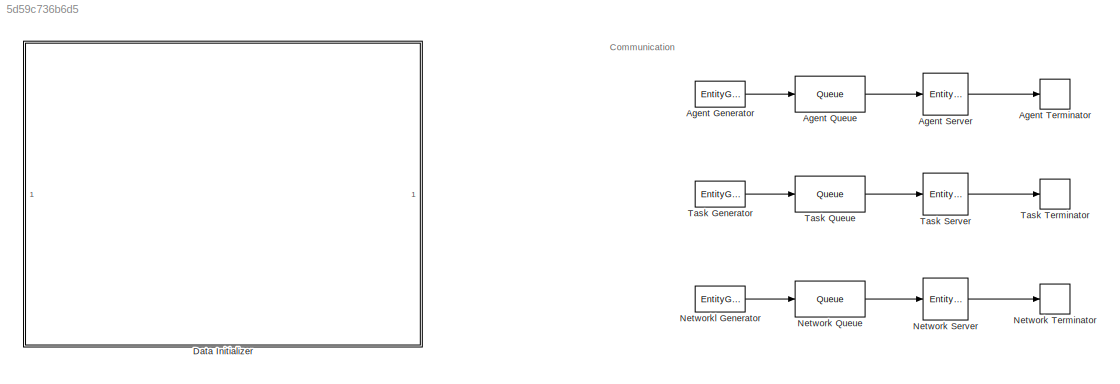
MODEL slx_5d59c736b6d5
KIND model
CONFIG AbsTol = auto
CONFIG EnableMultiTasking = off
CONFIG FixedStep = auto
CONFIG MaxStep = auto
CONFIG MinStep = auto
CONFIG RelTol = 1e-3
CONFIG SampleTimeConstraint = Unconstrained
CONFIG SolverName = VariableStepAuto
CONFIG StartTime = 0.0
CONFIG StopTime = 10.0
BLOCK [EntityGenerator] Agent Generator
  EntityType = Bus object
  EntityTypeName = agent
  GenerateAction = persistent count\nif isempty(count)\n    count = 0;\nend\ncount = count + 1;\nentity.Id = count;\nentity.CurrentPosition = [chargingStations(count,:)';0];\nentity.Type = AgentType.WarehouseRobot;\nentity.Footprint = agentFootprint;
  IntergenerationTimeAction = persistent dtArray index \nif isempty(dtArray)\n    dtArray = [zeros(1,numAgents-1] inf];\n    inden = 1;\nend\ndt = dtArray(index);\nindex = index + 1;
  OutputPortMap = o3
  OutputPortMessageModes = m
  TimeSource = MATLAB action
BLOCK [Queue] Agent Queue
  Capacity = inf
  InputPortMap = u0
  InputPortMessageModes = m
  OutputPortMap = o5
  OutputPortMessageModes = m
BLOCK [EntityServer] Agent Server
  Capacity = inf
  EntryAction = Agents.createAgent(entity.Id,entity.CurrentPosition,entity.Type,entity.Foorprint)
  InputPortMap = u2
  InputPortMessageModes = m
  OutputPortMap = o9
  OutputPortMessageModes = m
  ServiceTimeValue = 0.5
BLOCK [EntityTerminator] Agent Terminator
  InputPortMap = u0
  InputPortMessageModes = m
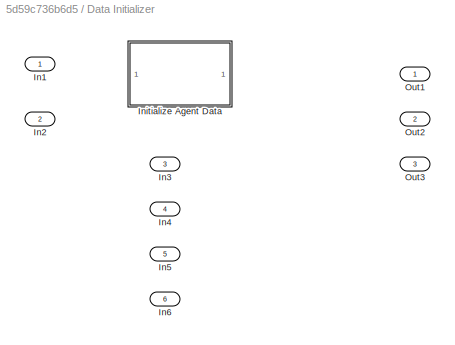
BLOCK [SubSystem] Data Initializer
BLOCK [Inport] Data Initializer/In1
BLOCK [Inport] Data Initializer/In2
  Port = 2
BLOCK [Inport] Data Initializer/In3
  Port = 3
BLOCK [Inport] Data Initializer/In4
  Port = 4
BLOCK [Inport] Data Initializer/In5
  Port = 5
BLOCK [Inport] Data Initializer/In6
  Port = 6
BLOCK [SubSystem] Data Initializer/Initialize Agent Data
BLOCK [Outport] Data Initializer/Out1
BLOCK [Outport] Data Initializer/Out2
  Port = 2
BLOCK [Outport] Data Initializer/Out3
  Port = 3
BLOCK [Queue] Network Queue
  Capacity = inf
  InputPortMap = u0
  InputPortMessageModes = m
  OutputPortMap = o5
  OutputPortMessageModes = m
BLOCK [EntityServer] Network Server
  Capacity = inf
  EntryAction = createNetwork(entity.Map)
  InputPortMap = u2
  InputPortMessageModes = m
  OutputPortMap = o9
  OutputPortMessageModes = m
  ServiceTimeValue = 0.5
BLOCK [EntityTerminator] Network Terminator
  InputPortMap = u0
  InputPortMessageModes = m
BLOCK [EntityGenerator] Networkl Generator
  EntityType = Bus object
  EntityTypeName = network
  GenerateAction = % Pick Maixmum agent radius\nagentRadius = ceil(sqrt(agentFootprint(1)^2+agentFootprint(2)^2)/2*paddingFactor);\nfor ii = 1:size(logical,1)\n    for jj = 1:size(logicalMap,2)\n        entity.Map(ii,jj).Name = [ii;jj]-1;\n        nodesX = jj - agentRadius:jj+agentRadius-1;\n        nodesY = size(logcialMap,1)-ii+2-agentRadius:size(logicalMap-1)-ii+1+agentRadius;\n        if any(nodesY <1)||any(nodesY > si...<+1198ch>
  IntergenerationTimeAction = persistent dtArray index \nif isempty(dtArray)\n    dtArray = [zeros(1,numAgents-1] inf];\n    inden = 1;\nend\ndt = dtArray(index);\nindex = index + 1;
  OutputPortMap = o3
  OutputPortMessageModes = m
  TimeSource = MATLAB action
BLOCK [EntityGenerator] Task Generator
  EntityType = Bus object
  EntityTypeName = task
  GenerateAction = persistent count\nif isempty(count)\n    count = 0;\nend\ncount = count + 1;\nentity.Id = count;\nm = length(loadingStations(:,2);\nn = length(unloadingStations(:,2);\n\nif (m>1)\n    entity.Source = loadingStations(packages(count),:)';\nelse\n    entity.Source = loadingStations(1,:)';\nend\n\nif(n>1)\n    entity.Sink = unloadingStations(packages(count),:)';\nelse\n    entity.Sink = unloadingStations(1,:)';\nend
  IntergenerationTimeAction = persistent dtArray index \nif isempty(dtArray)\n    dtArray = [zeros(1,numAgents-1] inf];\n    inden = 1;\nend\ndt = dtArray(index);\nindex = index + 1;
  OutputPortMap = o3
  OutputPortMessageModes = m
  TimeSource = MATLAB action
BLOCK [Queue] Task Queue
  Capacity = inf
  InputPortMap = u0
  InputPortMessageModes = m
  OutputPortMap = o5
  OutputPortMessageModes = m
BLOCK [EntityServer] Task Server
  Capacity = inf
  EntryAction = Tasks.createTask(entity.Id,entity.Source,entity.Sink)
  InputPortMap = u2
  InputPortMessageModes = m
  OutputPortMap = o9
  OutputPortMessageModes = m
  ServiceTimeValue = 0.5
BLOCK [EntityTerminator] Task Terminator
  InputPortMap = u0
  InputPortMessageModes = m
ANNOTATION (root): Communication
LINE Agent Generator:1 -> Agent Queue:1
LINE Agent Queue:1 -> Agent Server:1
LINE Agent Server:1 -> Agent Terminator:1
LINE Network Queue:1 -> Network Server:1
LINE Network Server:1 -> Network Terminator:1
LINE Networkl Generator:1 -> Network Queue:1
LINE Task Generator:1 -> Task Queue:1
LINE Task Queue:1 -> Task Server:1
LINE Task Server:1 -> Task Terminator:1
